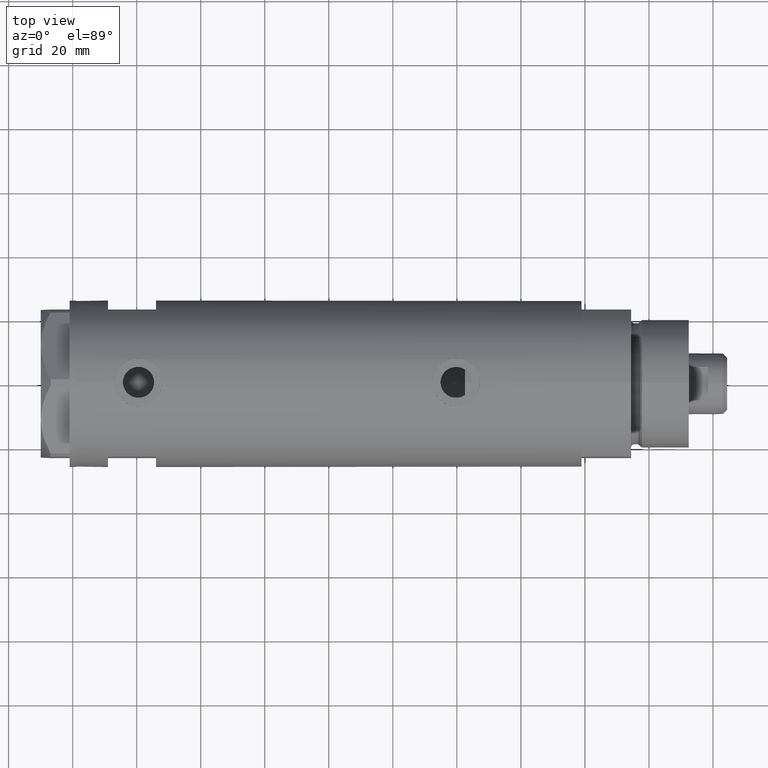
[diagram: clean part render]
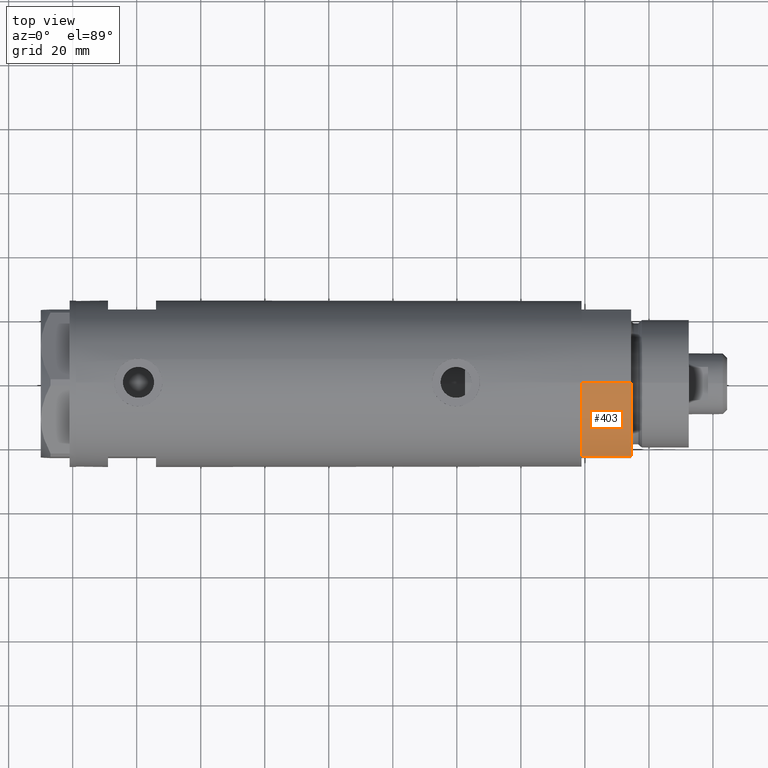
[diagram: same view with one face highlighted and labeled with its STEP entity id]
A machine part, top view. The second image highlights one B-rep face of the part: STEP entity #403.
In plain terms, the highlighted cylindrical surface (partial cylindrical patch) has radius 26 mm, axis along (-1, -0, 0).
Its self-contained STEP definition (entity closure, byte-faithful):
#41 = ORIENTED_EDGE ( 'NONE', *, *, #1842, .F. ) ;
#86 = CARTESIAN_POINT ( 'NONE',  ( 0.000000000000000000, 0.000000000000000000, 15.50000000000000000 ) ) ;
#263 = ORIENTED_EDGE ( 'NONE', *, *, #584, .T. ) ;
#403 = ADVANCED_FACE ( 'NONE', ( #1980 ), #3057, .T. ) ;
#460 = VERTEX_POINT ( 'NONE', #4615 ) ;
#517 = DIRECTION ( 'NONE',  ( -0.000000000000000000, -0.000000000000000000, 1.000000000000000000 ) ) ;
#584 = EDGE_CURVE ( 'NONE', #4375, #460, #2843, .T. ) ;
#763 = DIRECTION ( 'NONE',  ( 0.000000000000000000, 0.000000000000000000, 1.000000000000000000 ) ) ;
#813 = CARTESIAN_POINT ( 'NONE',  ( 0.000000000000000000, 0.000000000000000000, 15.50000000000000000 ) ) ;
#818 = DIRECTION ( 'NONE',  ( -1.000000000000000000, 0.000000000000000000, 0.000000000000000000 ) ) ;
#937 = CIRCLE ( 'NONE', #1159, 26.00000000000000355 ) ;
#949 = CARTESIAN_POINT ( 'NONE',  ( -12.12435565298215501, -22.99999999999999645, 0.000000000000000000 ) ) ;
#1107 = ORIENTED_EDGE ( 'NONE', *, *, #3664, .T. ) ;
#1159 = AXIS2_PLACEMENT_3D ( 'NONE', #813, #763, #1866 ) ;
#1225 = DIRECTION ( 'NONE',  ( -0.000000000000000000, -0.000000000000000000, -1.000000000000000000 ) ) ;
#1601 = CARTESIAN_POINT ( 'NONE',  ( -12.12435565298215323, -22.99999999999999645, 15.50000000000000000 ) ) ;
#1842 = EDGE_CURVE ( 'NONE', #4375, #4820, #937, .T. ) ;
#1848 = DIRECTION ( 'NONE',  ( 0.000000000000000000, 0.000000000000000000, 1.000000000000000000 ) ) ;
#1866 = DIRECTION ( 'NONE',  ( 1.000000000000000000, 0.000000000000000000, 0.000000000000000000 ) ) ;
#1980 = FACE_OUTER_BOUND ( 'NONE', #3384, .T. ) ;
#2083 = DIRECTION ( 'NONE',  ( -0.000000000000000000, -0.000000000000000000, -1.000000000000000000 ) ) ;
#2136 = VECTOR ( 'NONE', #517, 1000.000000000000000 ) ;
#2348 = ORIENTED_EDGE ( 'NONE', *, *, #3038, .T. ) ;
#2409 = VERTEX_POINT ( 'NONE', #949 ) ;
#2790 = AXIS2_PLACEMENT_3D ( 'NONE', #86, #1225, #818 ) ;
#2843 = LINE ( 'NONE', #3564, #4050 ) ;
#3038 = EDGE_CURVE ( 'NONE', #460, #2409, #4775, .T. ) ;
#3057 = CYLINDRICAL_SURFACE ( 'NONE', #2790, 26.00000000000000355 ) ;
#3342 = DIRECTION ( 'NONE',  ( 1.000000000000000000, 0.000000000000000000, 0.000000000000000000 ) ) ;
#3384 = EDGE_LOOP ( 'NONE', ( #41, #263, #2348, #1107 ) ) ;
#3564 = CARTESIAN_POINT ( 'NONE',  ( -26.00000000000000355, 0.000000000000000000, 15.50000000000000000 ) ) ;
#3664 = EDGE_CURVE ( 'NONE', #2409, #4820, #3932, .T. ) ;
#3863 = CARTESIAN_POINT ( 'NONE',  ( -12.12435565298215145, -22.99999999999999645, 0.000000000000000000 ) ) ;
#3932 = LINE ( 'NONE', #3863, #2136 ) ;
#4050 = VECTOR ( 'NONE', #2083, 1000.000000000000000 ) ;
#4078 = CARTESIAN_POINT ( 'NONE',  ( 0.000000000000000000, 0.000000000000000000, 0.000000000000000000 ) ) ;
#4132 = CARTESIAN_POINT ( 'NONE',  ( -26.00000000000000355, 0.000000000000000000, 15.50000000000000000 ) ) ;
#4229 = AXIS2_PLACEMENT_3D ( 'NONE', #4078, #1848, #3342 ) ;
#4375 = VERTEX_POINT ( 'NONE', #4132 ) ;
#4615 = CARTESIAN_POINT ( 'NONE',  ( -26.00000000000000355, 0.000000000000000000, 0.000000000000000000 ) ) ;
#4775 = CIRCLE ( 'NONE', #4229, 26.00000000000000355 ) ;
#4820 = VERTEX_POINT ( 'NONE', #1601 ) ;